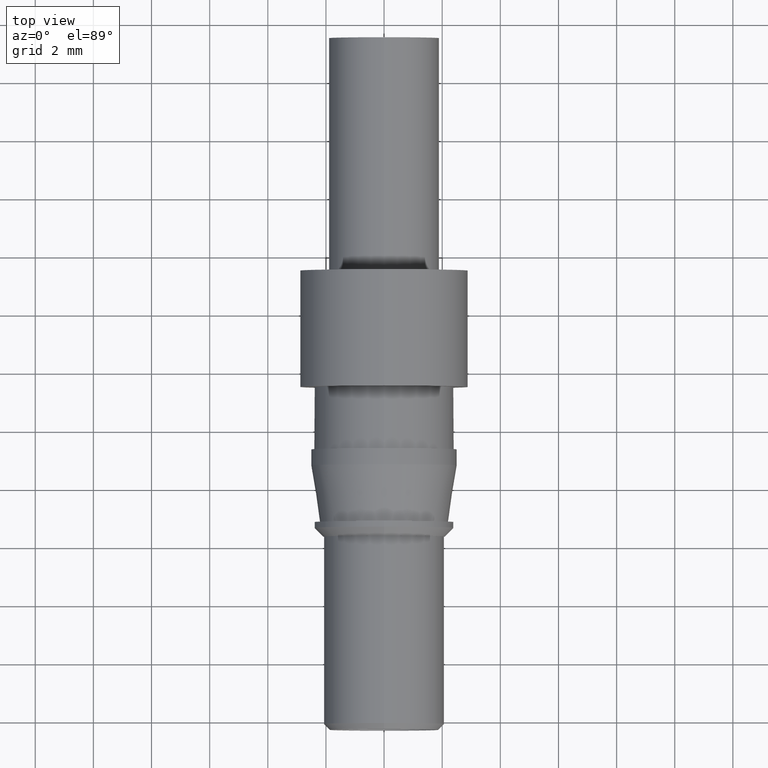
[diagram: clean part render]
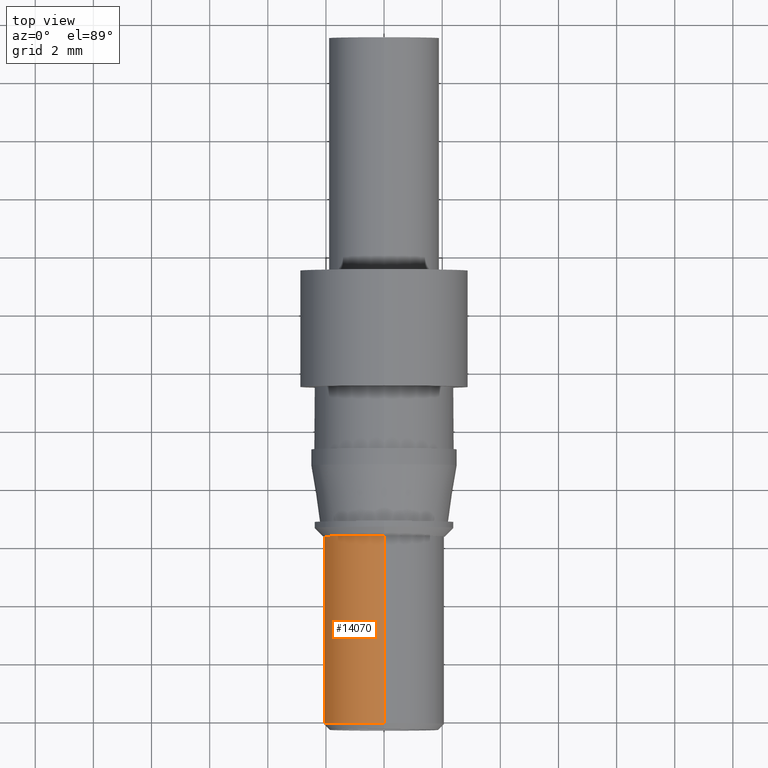
[diagram: same view with one face highlighted and labeled with its STEP entity id]
A machine part, top view. The second image highlights one B-rep face of the part: STEP entity #14070.
In plain terms, the highlighted cylindrical surface (partial cylindrical patch) has radius 2.075 mm, axis along (-0, -1, 0).
Its self-contained STEP definition (entity closure, byte-faithful):
#4720=CARTESIAN_POINT('',(66.6468230000002,77.3795149999963,
-14.3999999999995));
#4730=DIRECTION('',(0.,0.,-1.));
#4740=DIRECTION('',(0.,1.,0.));
#4750=AXIS2_PLACEMENT_3D('',#4720,#4730,#4740);
#4760=CIRCLE('',#4750,2.075);
#4770=CARTESIAN_POINT('',(66.6468230000002,79.4545149999963,
-14.3999999999995));
#4780=VERTEX_POINT('',#4770);
#4790=CARTESIAN_POINT('',(66.6468230000002,75.3045149999963,
-14.3999999999995));
#4800=VERTEX_POINT('',#4790);
#4810=EDGE_CURVE('',#4780,#4800,#4760,.T.);
#5440=CARTESIAN_POINT('',(66.6468230000002,79.4545149999963,
-21.1999999999995));
#5450=DIRECTION('',(0.,0.,-1.));
#5460=VECTOR('',#5450,1.);
#5470=LINE('',#5440,#5460);
#5480=CARTESIAN_POINT('',(66.6468230000002,79.4545149999963,
-20.8499999999995));
#5490=VERTEX_POINT('',#5480);
#5500=EDGE_CURVE('',#4780,#5490,#5470,.T.);
#5530=CARTESIAN_POINT('',(66.6468230000002,75.3045149999963,
-21.1999999999995));
#5540=DIRECTION('',(0.,0.,-1.));
#5550=VECTOR('',#5540,1.);
#5560=LINE('',#5530,#5550);
#5570=CARTESIAN_POINT('',(66.6468230000002,75.3045149999963,
-20.8499999999995));
#5580=VERTEX_POINT('',#5570);
#5590=EDGE_CURVE('',#4800,#5580,#5560,.T.);
#5610=CARTESIAN_POINT('',(66.6468230000002,77.3795149999963,
-20.8499999999995));
#5620=DIRECTION('',(0.,0.,-1.));
#5630=DIRECTION('',(0.,-1.,0.));
#5640=AXIS2_PLACEMENT_3D('',#5610,#5620,#5630);
#5650=CIRCLE('',#5640,2.075);
#12690=EDGE_CURVE('',#5490,#5580,#5650,.T.);
#13960=CARTESIAN_POINT('',(66.6468230000002,77.3795149999963,
-21.1999999999995));
#13970=DIRECTION('',(0.,0.,-1.));
#13980=DIRECTION('',(0.,1.,0.));
#13990=AXIS2_PLACEMENT_3D('',#13960,#13970,#13980);
#14000=CYLINDRICAL_SURFACE('',#13990,2.075);
#14010=ORIENTED_EDGE('',*,*,#12690,.F.);
#14020=ORIENTED_EDGE('',*,*,#5590,.T.);
#14030=ORIENTED_EDGE('',*,*,#4810,.T.);
#14040=ORIENTED_EDGE('',*,*,#5500,.F.);
#14050=EDGE_LOOP('',(#14040,#14030,#14020,#14010));
#14060=FACE_OUTER_BOUND('',#14050,.T.);
#14070=ADVANCED_FACE('',(#14060),#14000,.T.);